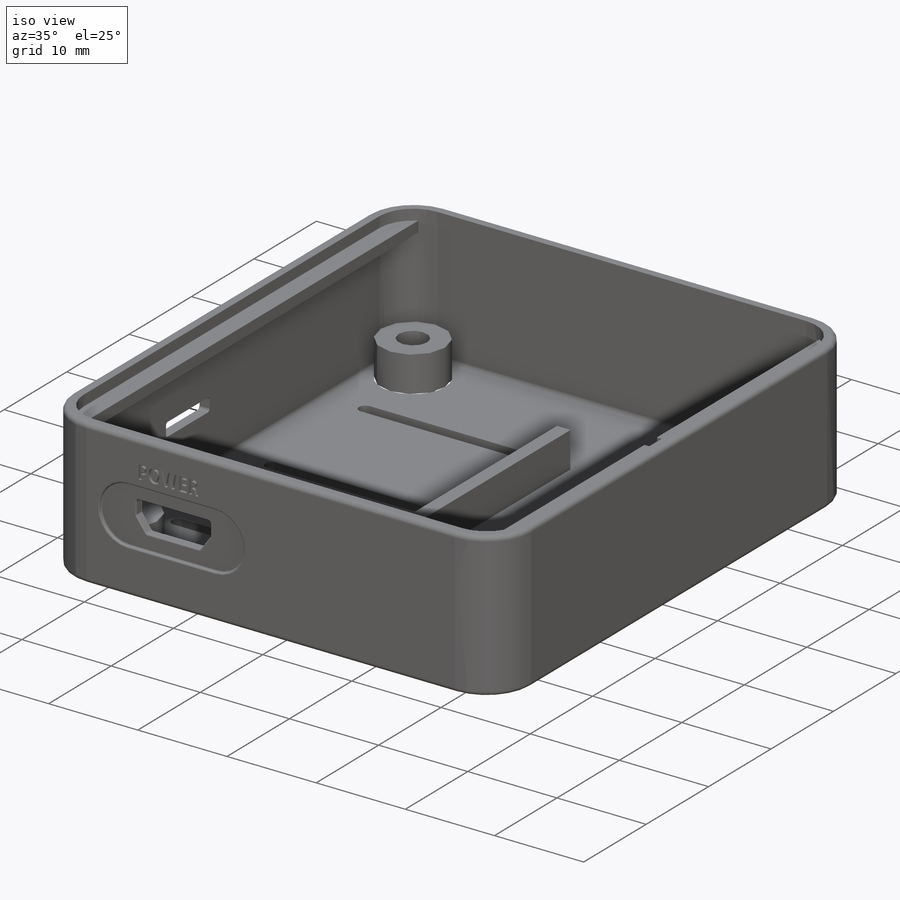
[diagram: iso view]
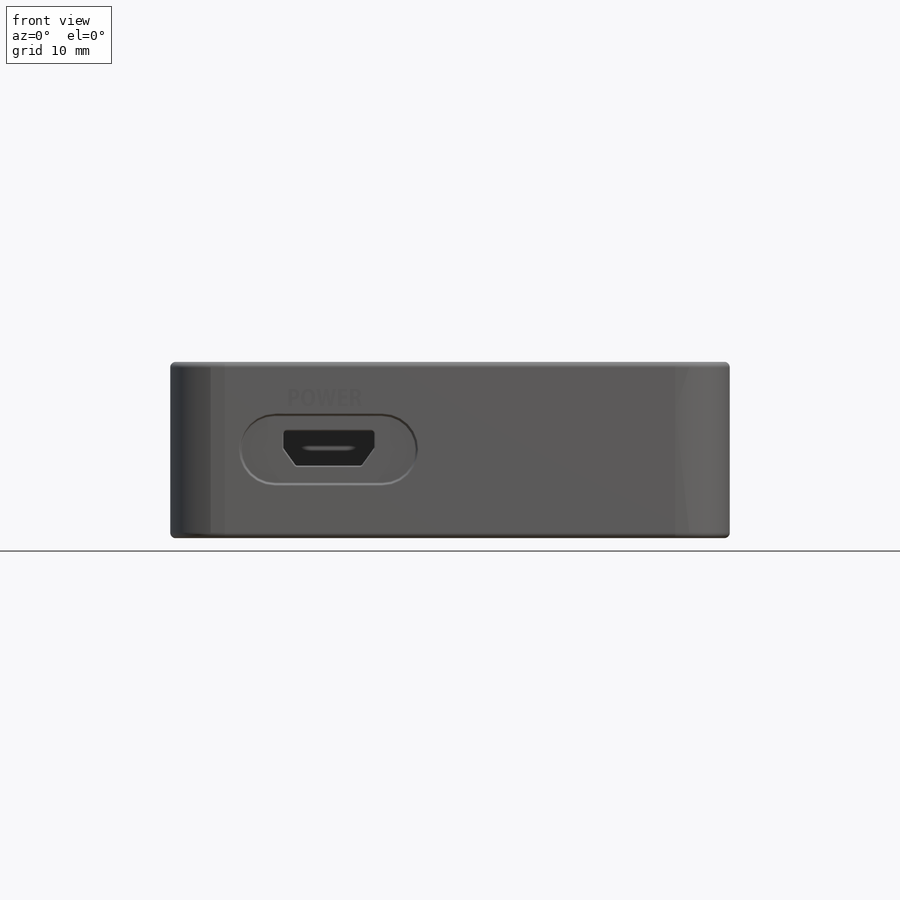
[diagram: front view]
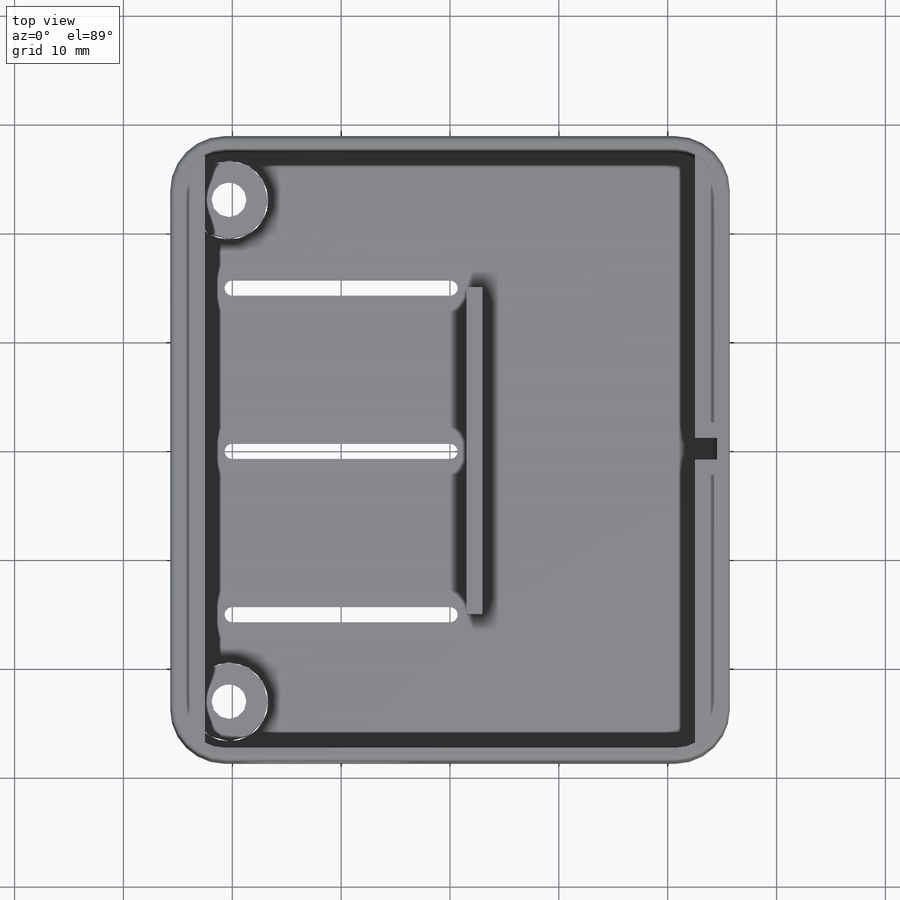
[diagram: top view]
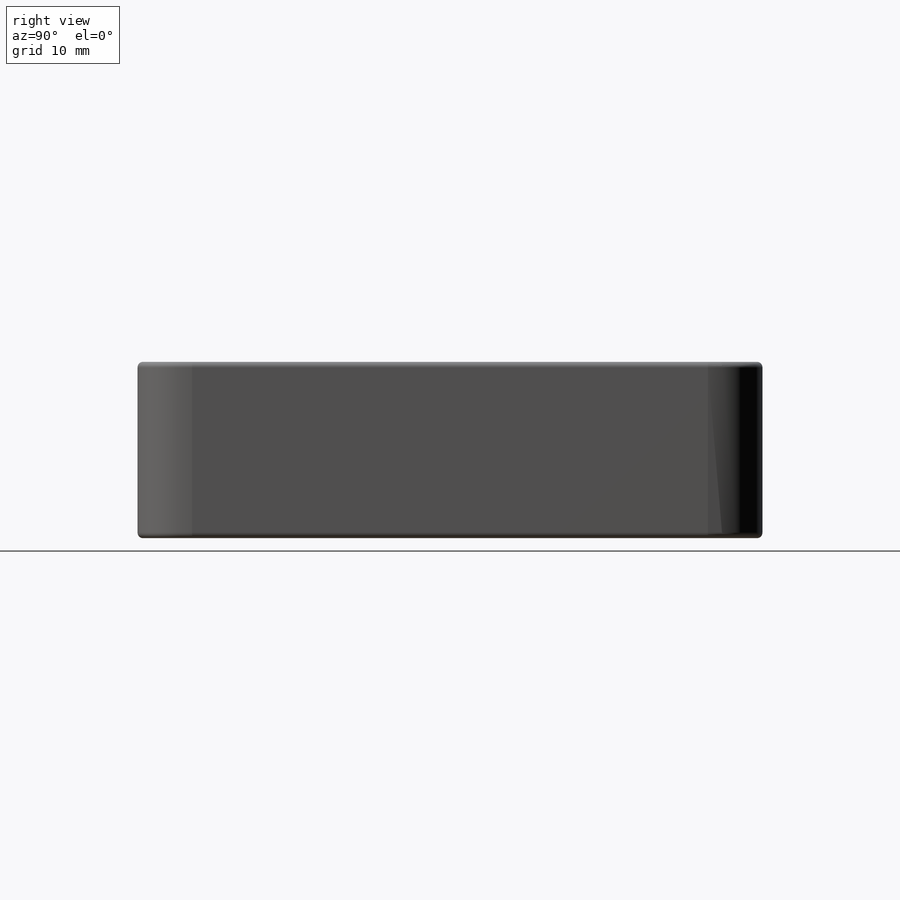
[diagram: right view]
SOLIDWORKS PART (.sldprt)
format: sldprt  version: not decoded by parser v0  size: 901,632 bytes
history: native  units: mm
features: sketch x15, cut_extrude x9, fillet x7, extrude x6, plane x3, material x1 (+10 scaffold rows collapsed)
feature tree (51):
  scaffold x10  (default folders/planes/origin — collapsed)
  material  "材质 <未指定>"
  plane  "前视"
  plane  "上视"
  plane  "右视"
  sketch  "草图1"  dims[D3=3.81mm D1=49.0mm D2=55.0mm D4=1.2mm]
  extrude  "凸台-拉伸2"  Depth=15mm
  sketch  "草图2"  dims[D1=0.0mm]
  extrude  "凸台-拉伸3"  Depth=1.2mm
  sketch  "草图3"  dims[c1.D1=3.2mm c1.D2=3.2mm c1.D3=46.101mm c1.D4=3.8105mm c1.D5=4.45mm c2.D4=4.2mm c2.D6=4.2mm c2.D7=2.0mm]
  extrude  "凸台-拉伸4"  Depth=4mm
  sketch  "草图5"  dims[c1.D1=8.3mm c1.D2=3.2mm c1.D3=1.6mm c1.D4=1.6mm c1.D5=6.0mm c1.D6=1.15mm c1.D7=1.5mm c2.D7=90.0deg c3.D7=9.2mm c3.D8=1.45mm]
  cut_extrude  "切除-拉伸1"  Depth=1.2mm
  fillet  "圆角1"  Radius=0.3mm
  sketch  "草图6"  dims[D1=1.5mm D2=0.78mm D3=0.78mm]
  cut_extrude  "切除-拉伸2"  Depth=0.3mm
  sketch  "草图8"  dims[D1=24.0mm D2=17.0mm D3=1.6mm D4=1.5mm]
  cut_extrude  "切除-拉伸3"  Depth=10.5mm
  fillet  "圆角2"  Radius=0.3mm
  sketch  "草图9"
  cut_extrude  "切除-拉伸4"  Depth=0.3mm
  sketch  "草图10"
  cut_extrude  "切除-拉伸5"  Depth=0.3mm
  fillet  "圆角3"  Radius=0.5mm
  fillet  "圆角4"  Radius=0.5mm
  sketch  "草图11"  dims[D2=0.7mm D4=0.7mm D6=0.7mm D1=20.0mm D3=20.0mm D5=20.0mm D7=15.0mm D8=15.0mm]
  cut_extrude  "切除-拉伸6"  Depth=10.3mm
  fillet  "圆角5"  Radius=0.3mm
  sketch  "草图12"  dims[D2=7.62mm D1=2.0mm]
  extrude  "凸台-拉伸5"  Depth=1.2mm
  fillet  "圆角6"  Radius=0.15mm
  fillet  "圆角7"  Radius=0.15mm
  sketch  "草图13"  dims[D1=3.81mm D2=2.0mm]
  extrude  "凸台-拉伸7"  Depth=1.2mm
  sketch  "草图15"  dims[c1.D1=30.0mm c1.D2=1.5mm c1.D3=15.0mm c1.D4=~15.052781mm c2.D4=90.0deg c3.D4=1.5mm]
  extrude  "凸台-拉伸9"  Depth=4mm
  sketch  "草图16"
  cut_extrude  "切除-拉伸7"  Depth=4mm
  sketch  "草图17"  dims[D1=5.5mm D2=5.5mm]
  cut_extrude  "切除-拉伸8"  Depth=3mm
  sketch  "草图18"  dims[D1=2.0mm]
  cut_extrude  "切除-拉伸9"  Depth=10mm
decode coverage: 34 of 37 modeling features carry decoded parameters
note: ~ marks probable driven/reference dimensions
note: suppression state not decoded; provenance and decode notes live in map.json
